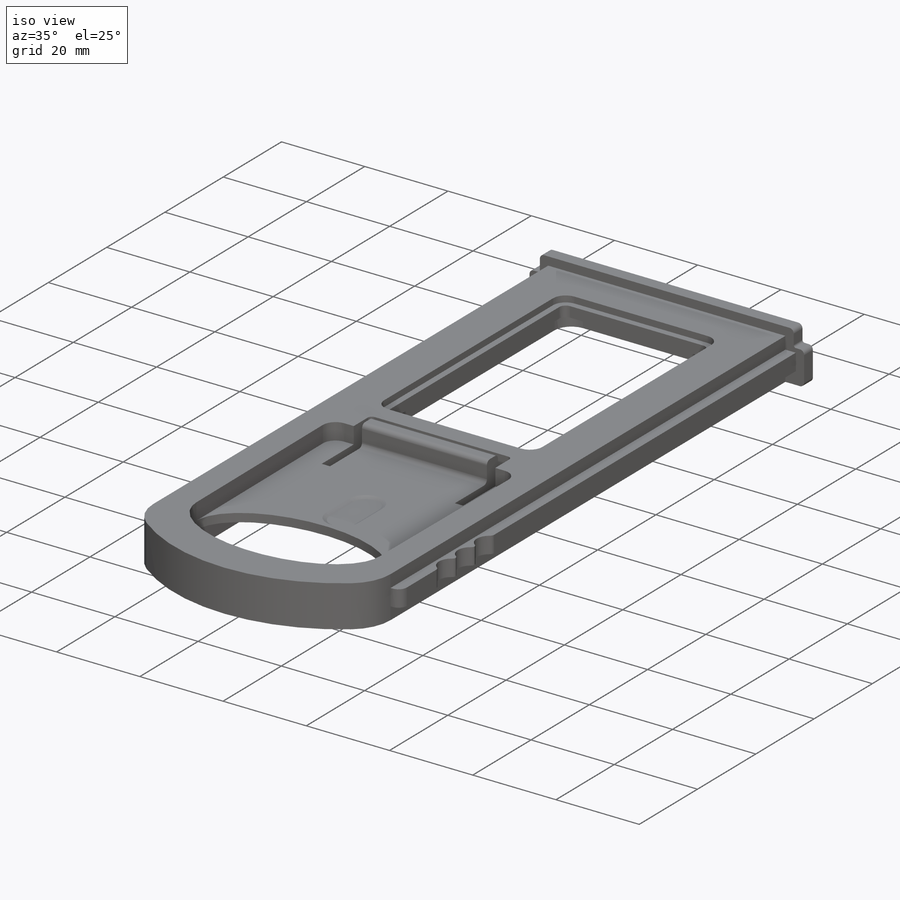
[diagram: iso view]
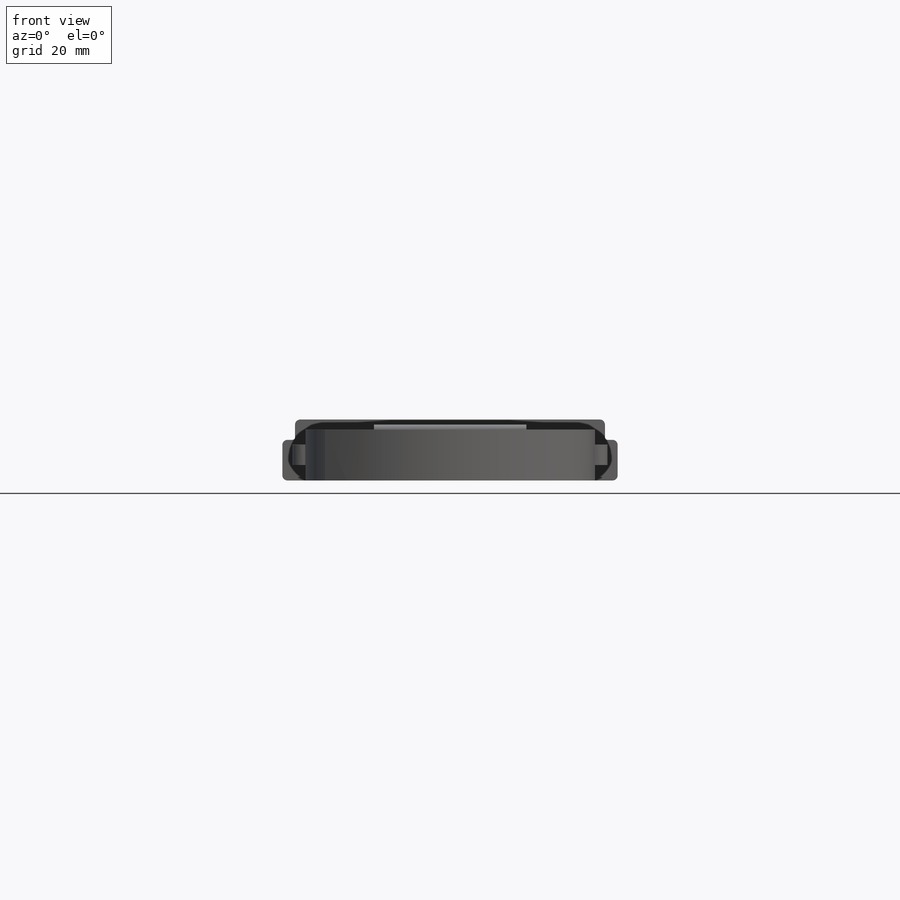
[diagram: front view]
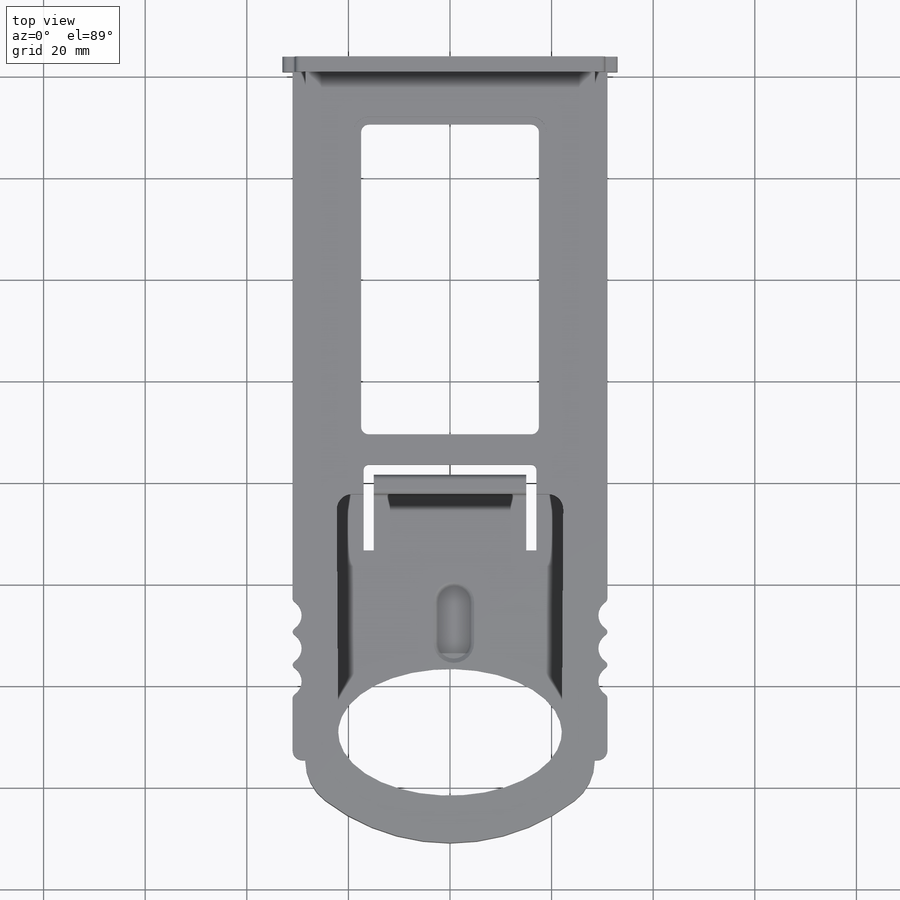
[diagram: top view]
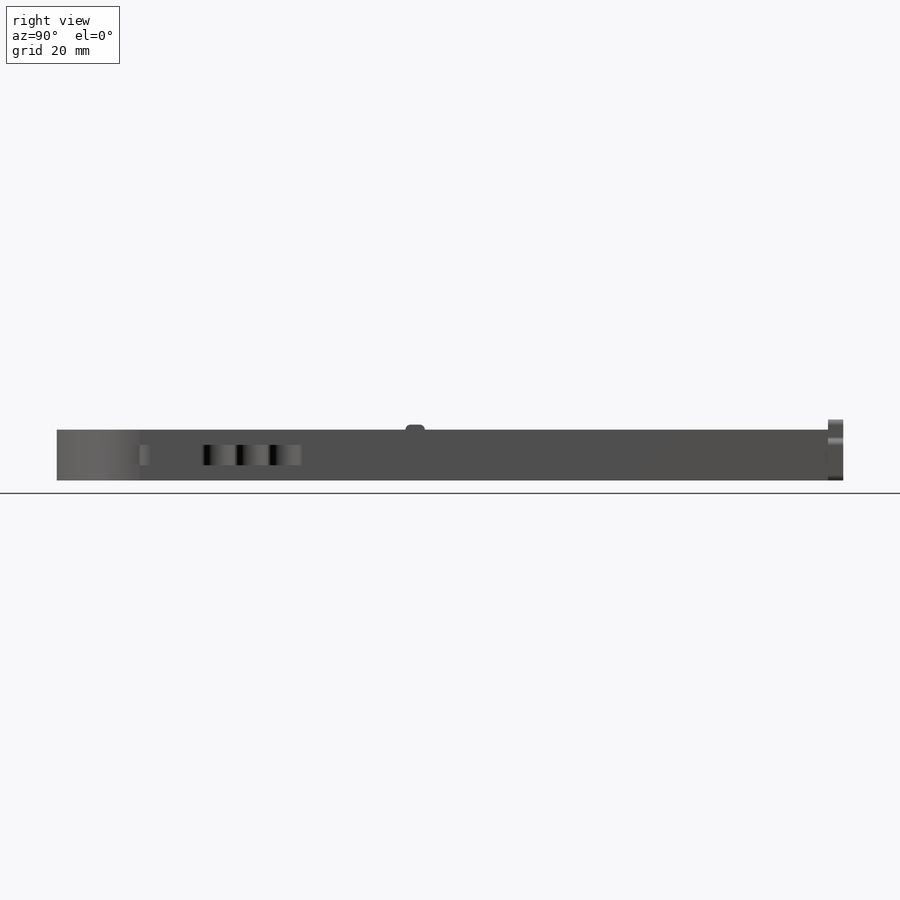
[diagram: right view]
SOLIDWORKS PART (.sldprt)
format: sldprt  version: not decoded by parser v0  size: 572,928 bytes
history: native  units: mm
features: sketch x11, fillet x9, cut_extrude x6, extrude x5, mirror x2, material x1, plane x1 (+13 scaffold rows collapsed)
feature tree (48):
  scaffold x13  (default folders/planes/origin — collapsed)
  material  "Material <not specified>"
  sketch  "Sketch1"  dims[c1.D4=~40.862408mm c1.D5=~40.305087mm c1.D1=140.0mm c1.D2=57.0mm c1.D3=130.0mm c2.D4=~40.856574mm c2.D6=12.5mm c2.D7=22.0mm c2.D8=~76.643426mm]
  extrude  "Boss-Extrude2"  Depth=10mm
  fillet  "Fillet1"  Radius=10mm
  sketch  "Sketch2"  dims[D1=66.0mm D2=61.0mm D3=8.0mm D4=12.0mm D5=4.0mm]
  extrude  "Boss-Extrude3"  Depth=3mm
  fillet  "Fillet5"  Radius=1mm
  sketch  "Sketch4"  dims[D1=4.0mm D2=135.5mm]
  extrude  "Boss-Extrude6"  Depth=2.5mm
  fillet  "Fillet8"  Radius=2mm
  sketch  "Sketch8"  dims[D1=~26.561818mm D2=3.0]
  cut_extrude  "Cut-Extrude6"  [1 undecoded]
  fillet  "Fillet10"  Radius=1mm
  mirror  "Mirror3"
  sketch  "Sketch9"  dims[D3=4.0mm D1=77.0mm D2=45.0mm]
  cut_extrude  "Cut-Extrude7"  Depth=6mm
  sketch  "Sketch13"  dims[D1=3.0mm]
  cut_extrude  "Cut-Extrude10"  Depth=4mm
  sketch  "Sketch15"  dims[D1=34.0mm D2=2.0mm D3=0.0mm D4=2.0mm D5=11.0mm]
  cut_extrude  "Cut-Extrude12"  [1 undecoded]
  fillet  "Fillet11"  Radius=1mm
  mirror  "Mirror4"
  sketch  "Sketch18"  dims[c1.D1=~4.019896mm c1.D4=4.0mm c2.D1=8.0mm c2.D2=~67.455408mm c2.D3=~27.746823mm]
  cut_extrude  "Cut-Extrude17"  Depth=0.5mm
  sketch  "Sketch19"  dims[D1=3.0mm D2=58.0mm D3=32.0mm]
  cut_extrude  "Cut-Extrude18"  [1 undecoded]
  sketch  "Sketch21"  dims[D1=0.0mm]
  extrude  "Boss-Extrude7"  Depth=1mm
  fillet  "Fillet12"  Radius=1mm
  fillet  "Fillet13"  Radius=1mm
  plane  "Plane1"
  sketch  "Sketch23"  dims[D1=1.5mm D2=1.5mm]
  extrude  "Boss-Extrude8"  Depth=1.1mm
  fillet  "Fillet14"  Radius=0.5mm
  fillet  "Fillet15"  Radius=0.5mm
decode coverage: 28 of 33 modeling features carry decoded parameters
note: ~ marks probable driven/reference dimensions
note: 3 parameter values undecoded
summary: no parameter record found for 3 features
note: suppression state not decoded; provenance and decode notes live in map.json
